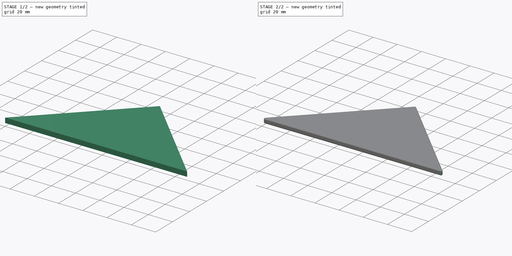
[diagram: build sequence overview — one tinted view per stage of 2, left to right]
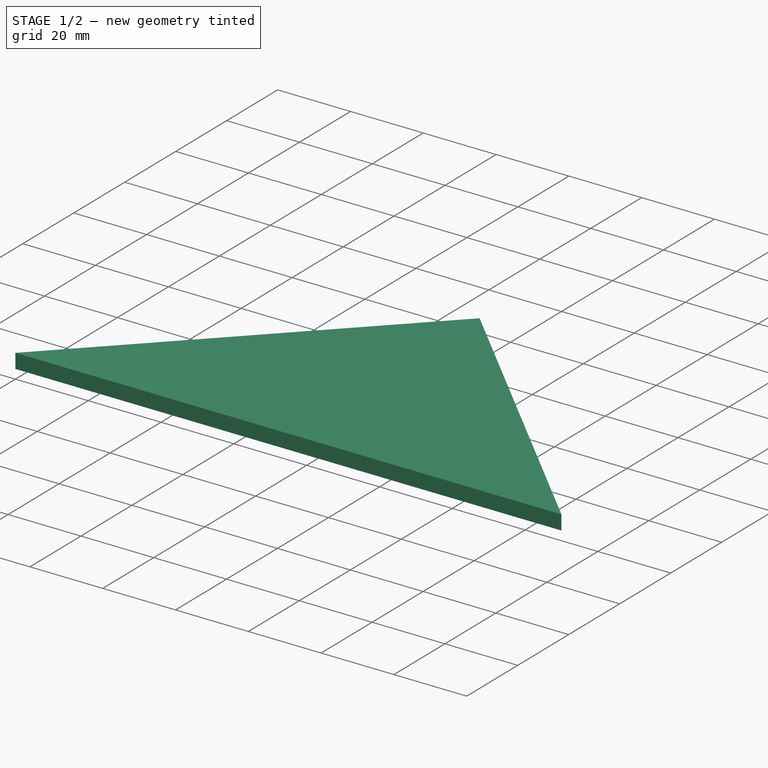
[diagram: stage 1 of 2 — iso view after this stage's code; geometry added in this stage tinted green]
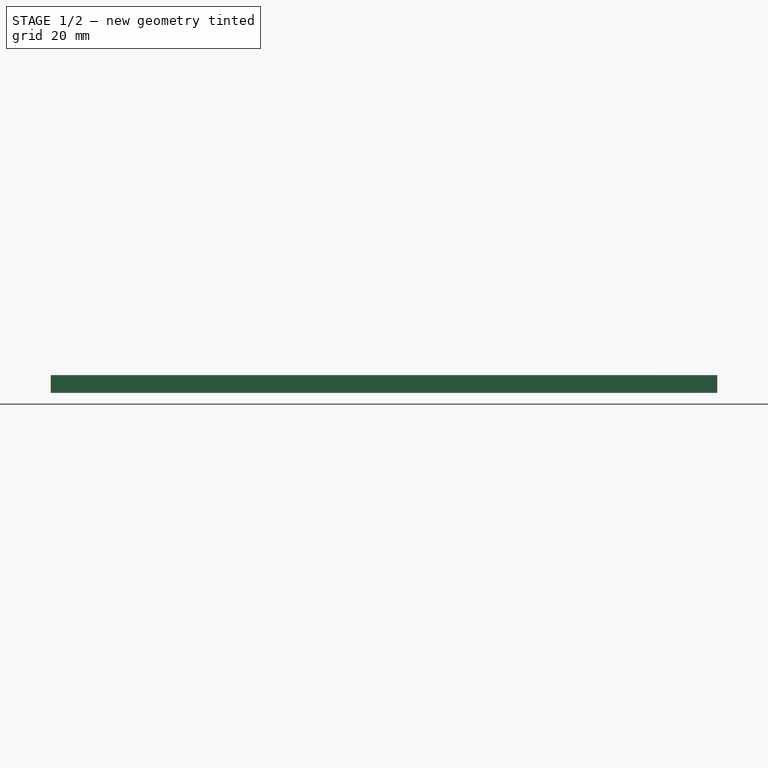
[diagram: stage 1 of 2 — front view after this stage's code; geometry added in this stage tinted green]
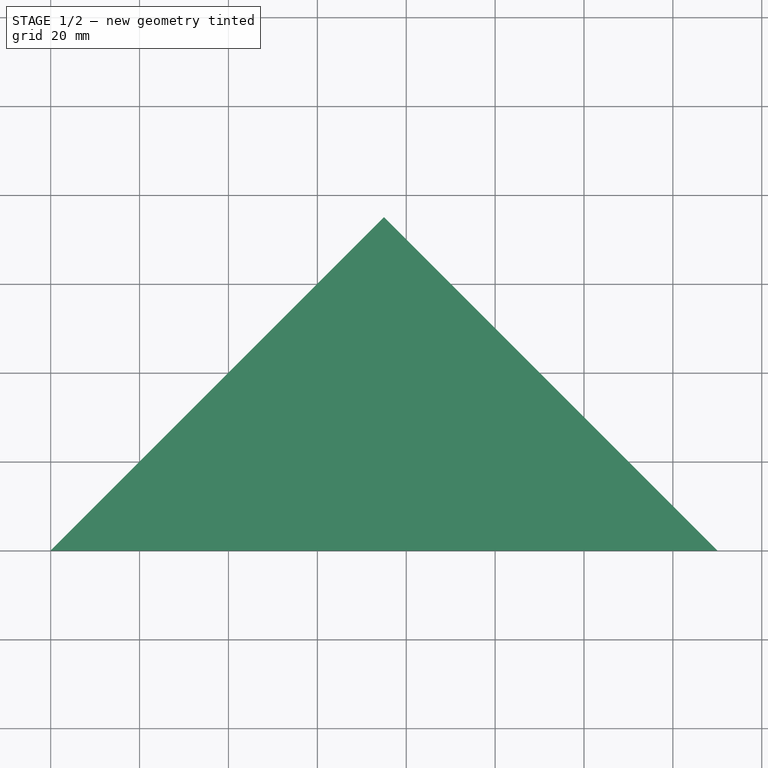
[diagram: stage 1 of 2 — top view after this stage's code; geometry added in this stage tinted green]
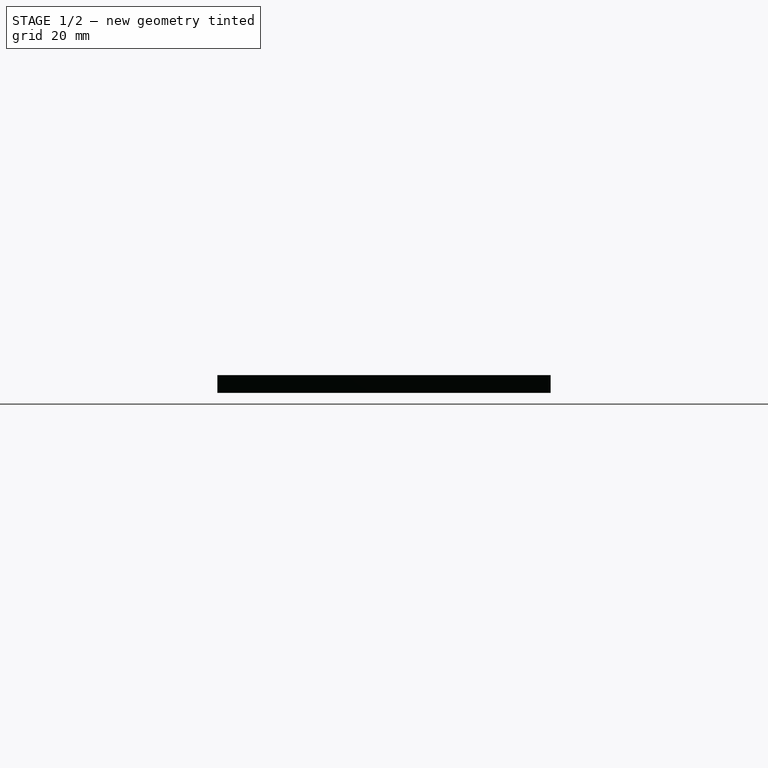
[diagram: stage 1 of 2 — right view after this stage's code; geometry added in this stage tinted green]
FCSTD DOCUMENT  (FreeCAD 0.16R6453 (Git))
Label: triangulo-grande
License: All rights reserved
LicenseURL: http://en.wikipedia.org/wiki/All_rights_reserved
objects: Sketcher::SketchObject×1, PartDesign::Pad×1, Part::Fillet×1
note: 4 computed .brp shape members not serialized (recipe doc carries the construction recipe); baked Part::Feature solids carry a one-line shape summary decoded from their .brp

FEATURE [Sketcher::SketchObject] Sketch  label="triangulo-grande-sketch"
  sketch-geometry (3):
    g0: LineSegment StartX=0 StartY=0 StartZ=0 EndX=150 EndY=0 EndZ=0
    g1: LineSegment StartX=150 StartY=0 StartZ=0 EndX=75 EndY=75 EndZ=0
    g2: LineSegment StartX=75 StartY=75 StartZ=0 EndX=0 EndY=0 EndZ=0
  constraints (8):
    c: Horizontal(g0)
    c: Coincident(g0,g1)
    c: Coincident(g1,g2)
    c: Coincident(g2,g0)
    c: Coincident(g0,g-1)
    c: Angle(g0,g2) = 0.785398
    c: DistanceX(g0) = 150
    c: Equal(g2,g1)
FEATURE [PartDesign::Pad] Pad  label="triangulo-grande-pad"
  Length = 4
  Length2 = 100
  Sketch = -> Sketch
  Type = 0
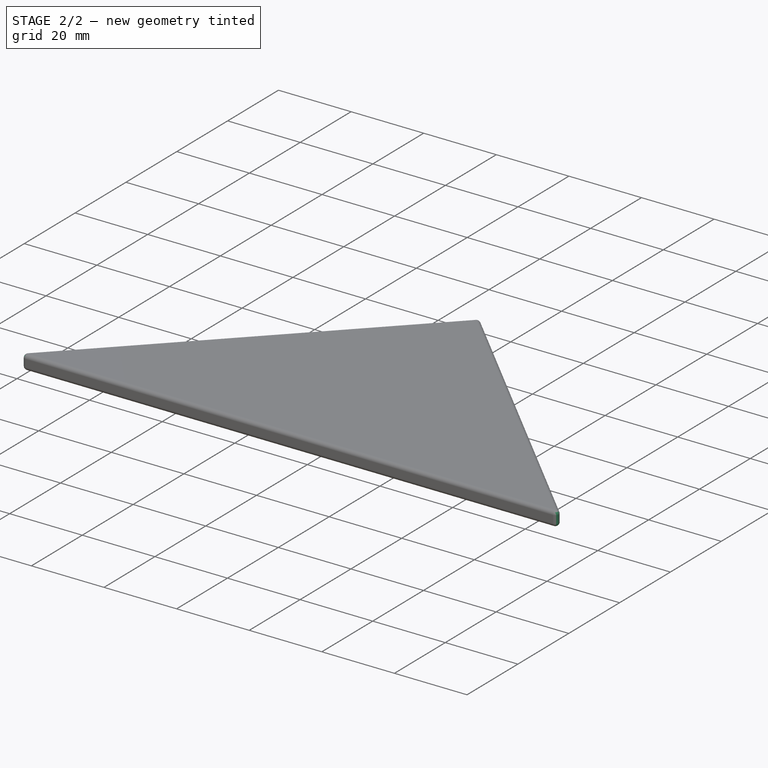
[diagram: stage 2 of 2 — iso view after this stage's code; geometry added in this stage tinted green]
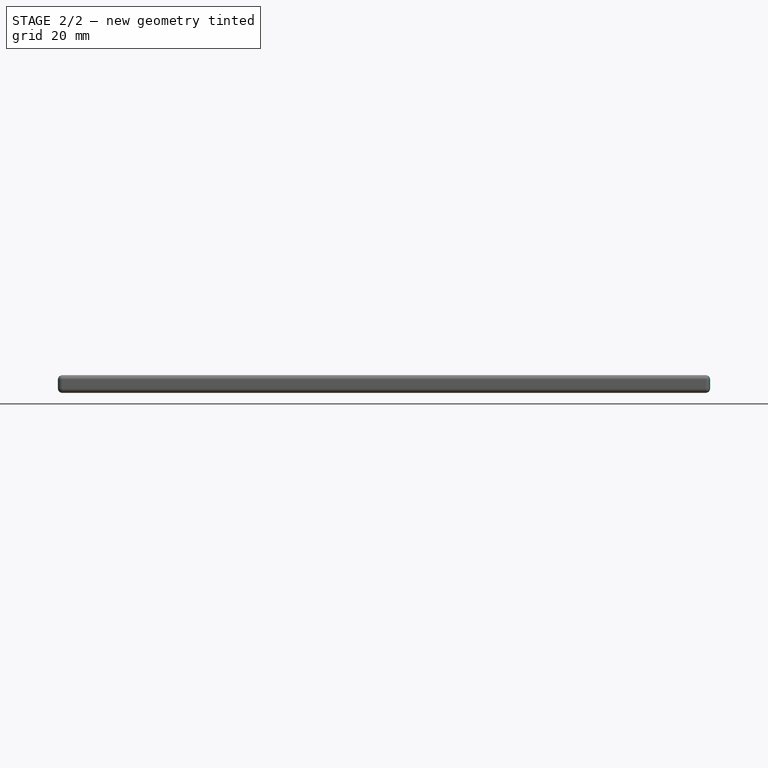
[diagram: stage 2 of 2 — front view after this stage's code; geometry added in this stage tinted green]
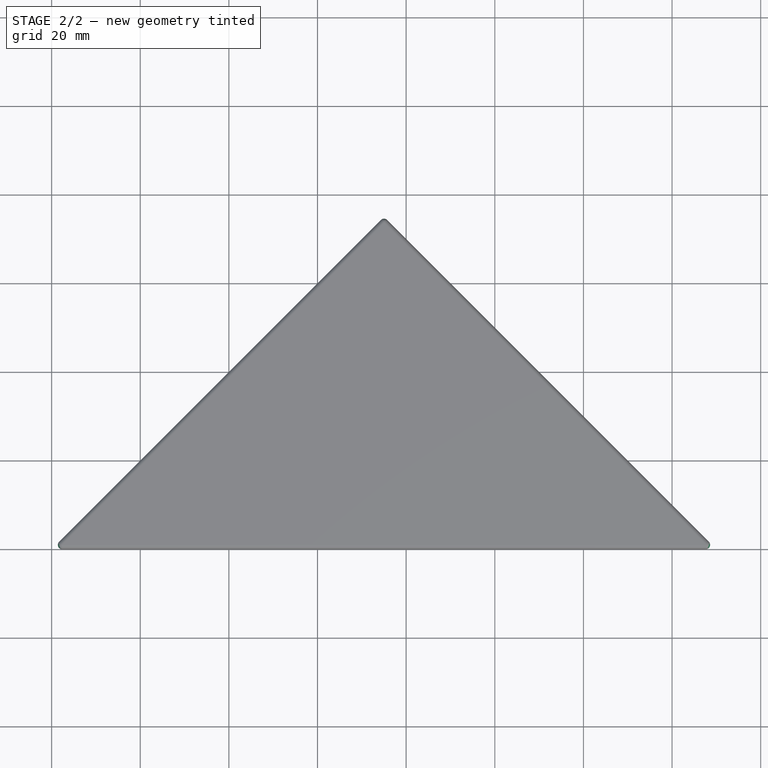
[diagram: stage 2 of 2 — top view after this stage's code; geometry added in this stage tinted green]
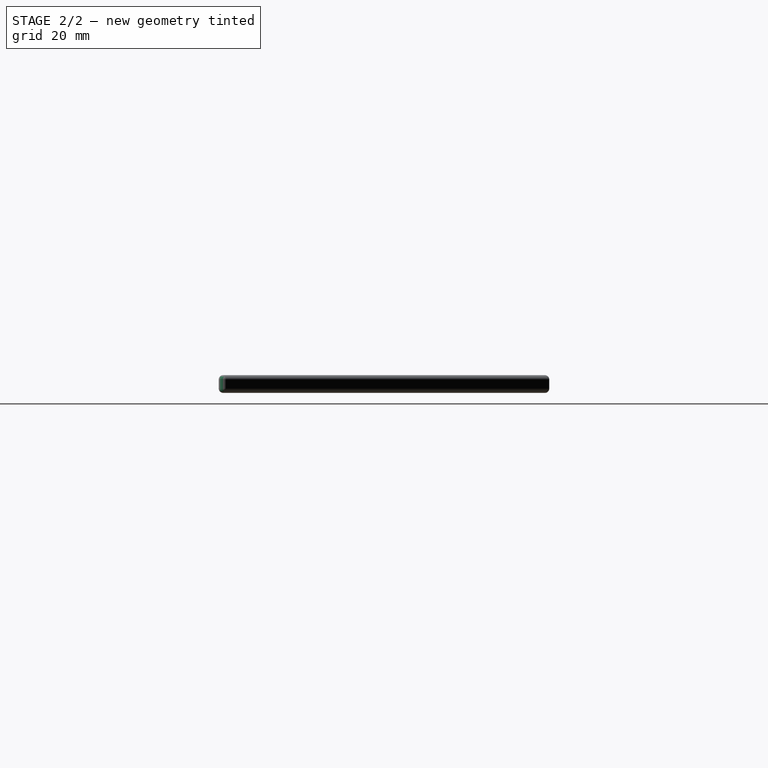
[diagram: stage 2 of 2 — right view after this stage's code; geometry added in this stage tinted green]
FEATURE [Part::Fillet] Fillet  label="triangulo-grande"
  Base = -> Pad
  Edges = 9 edges r=1: [Edge1,Edge2,Edge3,Edge4,Edge5,Edge6,Edge7,Edge8,Edge9]
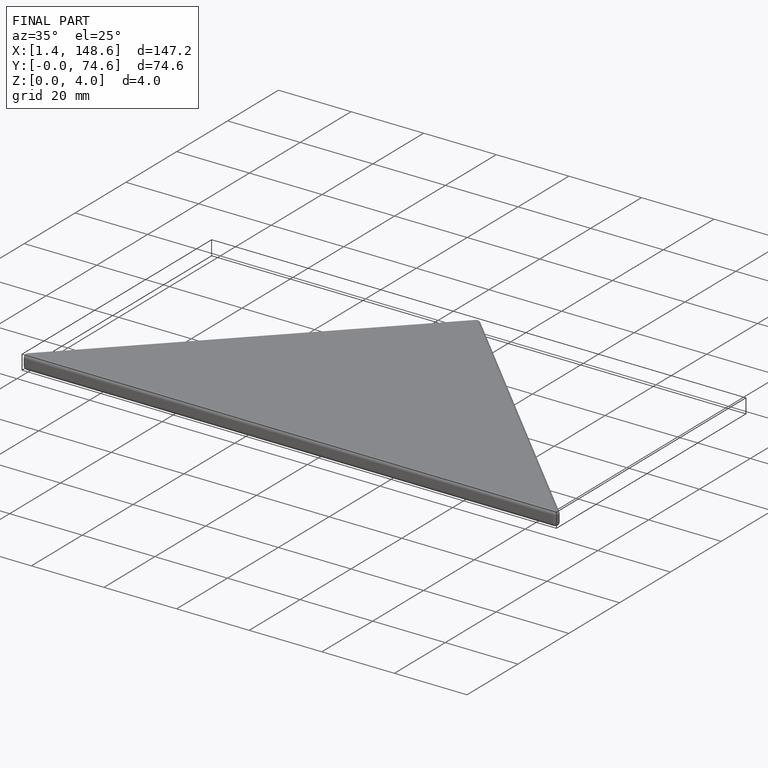
[diagram: finished part — iso view with bounding-box wireframe]
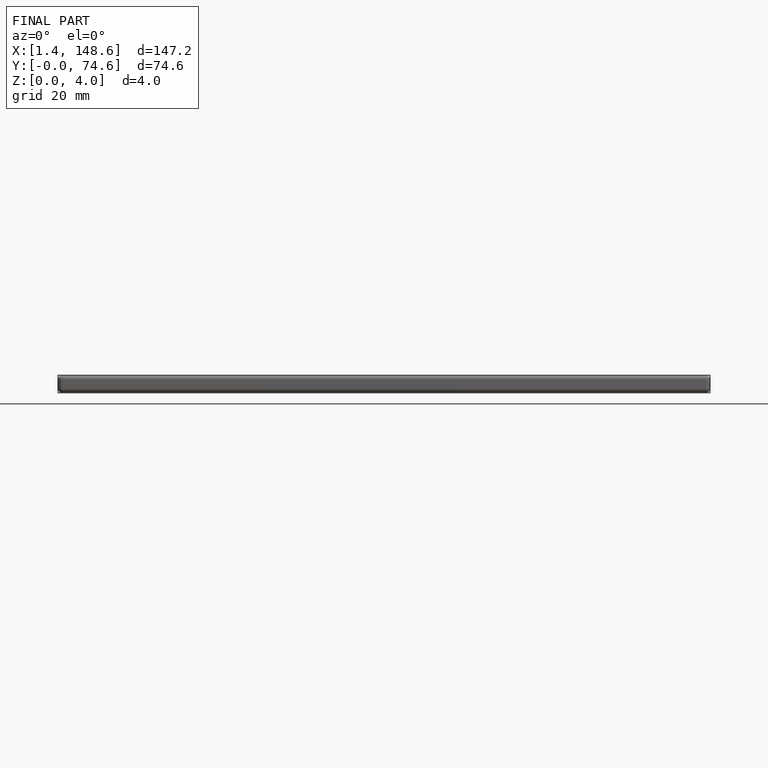
[diagram: finished part — front view with bounding-box wireframe]
